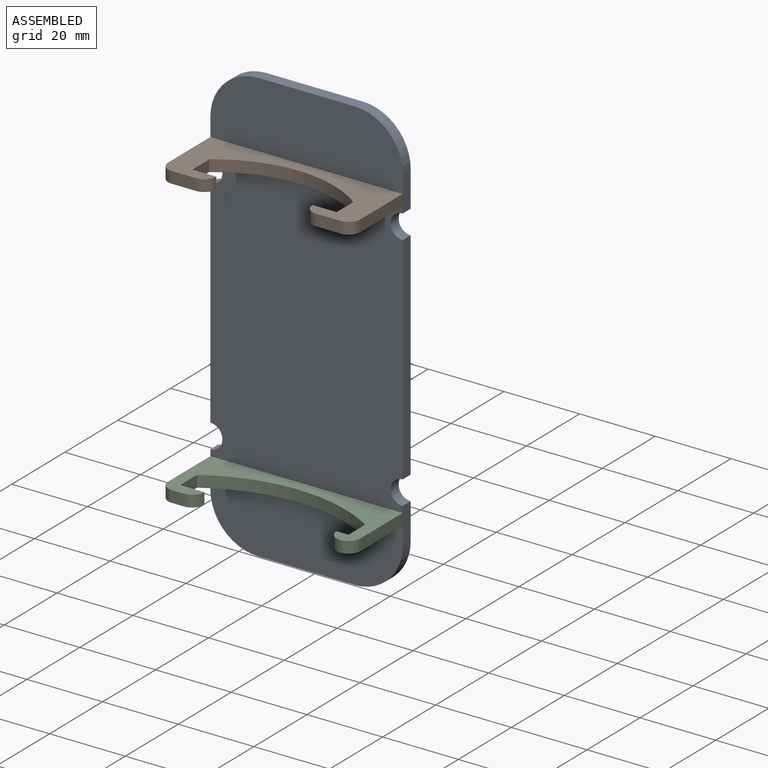
[diagram: assembled view]
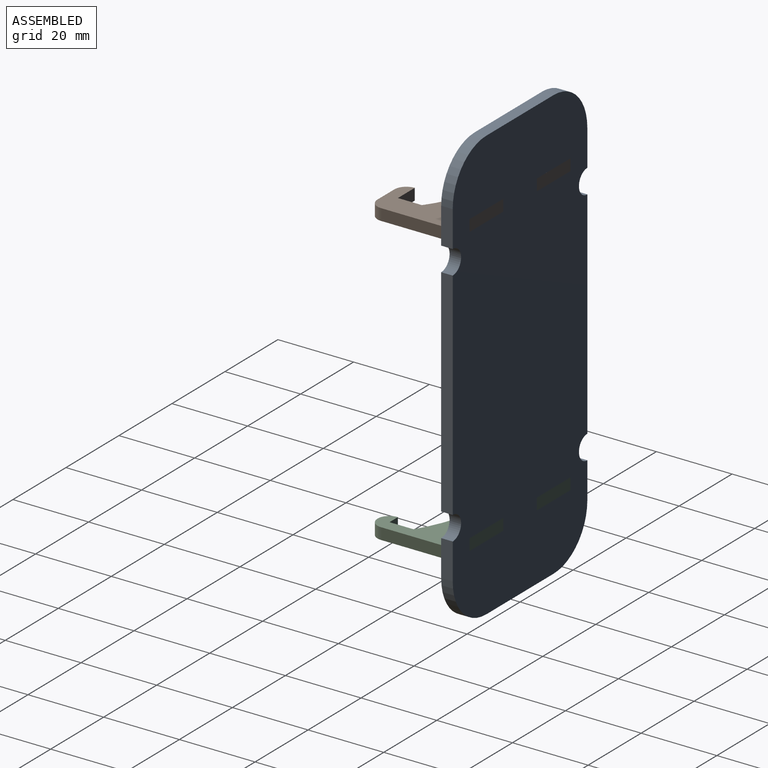
[diagram: assembled view, second angle]
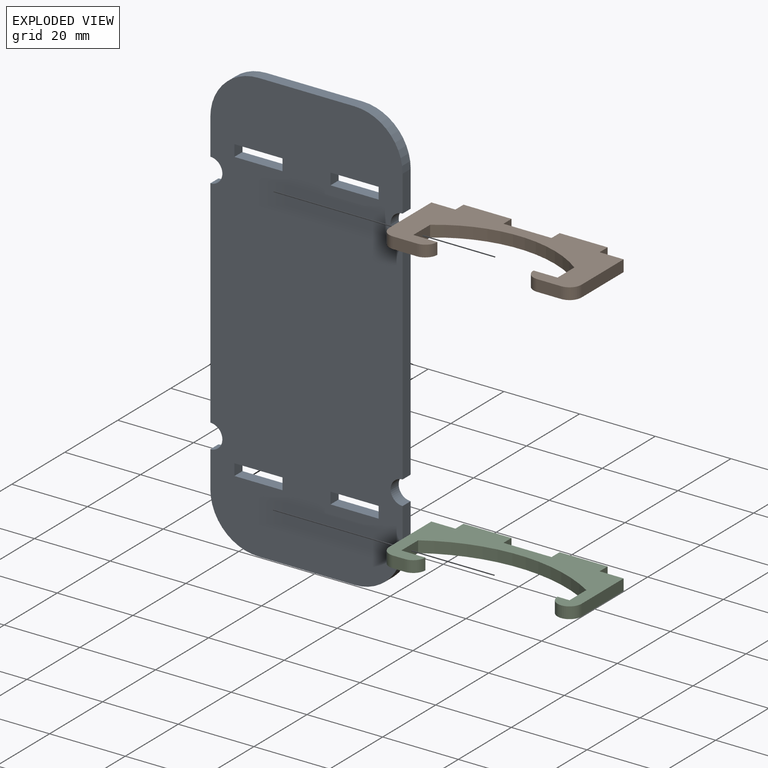
[diagram: exploded view]
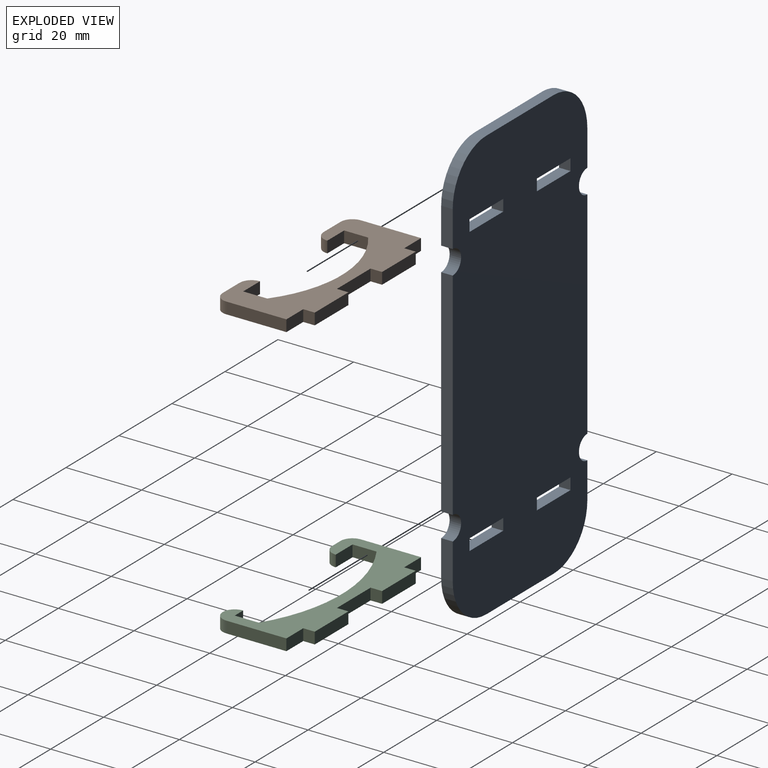
[diagram: exploded view, second angle]
ASSEMBLY  parts=3 mates=2
PART A: 34 faces, bbox 50.8x3x114.3 mm
  f0: plane 114.3x50.8mm, normal (0,-1,0), area 5449.8mm2, adj f2,f3,f4,f5,f6,f7,f8,f9
  f1: plane 114.3x50.8mm, normal (0,1,0), area 5449.8mm2, adj f2,f3,f4,f5,f6,f7,f8,f9
  f2: plane 9.53x3.05mm, normal (1,0,0), area 29mm2, adj f0,f1,f10,f16
  f3: plane 57.15x3.05mm, normal (1,0,0), area 174.2mm2, adj f0,f1,f15,f16
  f4: plane 9.53x3.05mm, normal (1,0,0), area 29mm2, adj f0,f1,f11,f15
  f5: plane 9.53x3.05mm, normal (-1,0,0), area 29mm2, adj f0,f1,f13,f17
  f6: plane 57.15x3.05mm, normal (-1,0,0), area 174.2mm2, adj f0,f1,f14,f17
  f7: plane 9.53x3.05mm, normal (-1,0,0), area 29mm2, adj f0,f1,f12,f14
  f8: plane 25.4x3.05mm, normal (0,0,-1), area 77.4mm2, adj f0,f1,f10,f13
  f9: plane 25.4x3.05mm, normal (0,0,1), area 77.4mm2, adj f0,f1,f11,f12
  f10: cylinder r=12.7mm len=12.7mm, axis (0,-1,0), area 60.8mm2, adj f0,f1,f2,f8
  f11: cylinder r=12.7mm len=12.7mm, axis (0,1,0), area 60.8mm2, adj f0,f1,f4,f9
  f12: cylinder r=12.7mm len=12.7mm, axis (0,-1,0), area 60.8mm2, adj f0,f1,f7,f9
  f13: cylinder r=12.7mm len=12.7mm, axis (0,1,0), area 60.8mm2, adj f0,f1,f5,f8
  f14: cylinder r=3.17mm len=6.35mm, axis (0,-1,0), area 30.4mm2, adj f0,f1,f6,f7
  f15: cylinder r=3.17mm len=6.35mm, axis (0,-1,0), area 30.4mm2, adj f0,f1,f3,f4
  f16: cylinder r=3.17mm len=6.35mm, axis (0,-1,0), area 30.4mm2, adj f0,f1,f2,f3
  f17: cylinder r=3.17mm len=6.35mm, axis (0,-1,0), area 30.4mm2, adj f0,f1,f5,f6
  f18: plane 3.05x3.05mm, normal (-1,0,0), area 9.3mm2, adj f0,f1,f19,f21
  f19: plane 12.7x3.05mm, normal (0,0,-1), area 38.7mm2, adj f0,f1,f18,f20
  f20: plane 3.05x3.05mm, normal (1,0,0), area 9.3mm2, adj f0,f1,f19,f21
  f21: plane 12.7x3.05mm, normal (0,0,1), area 38.7mm2, adj f0,f1,f18,f20
  f22: plane 3.05x3.05mm, normal (1,0,0), area 9.3mm2, adj f0,f1,f23,f25
  f23: plane 12.7x3.05mm, normal (0,0,1), area 38.7mm2, adj f0,f1,f22,f24
  f24: plane 3.05x3.05mm, normal (-1,0,0), area 9.3mm2, adj f0,f1,f23,f25
  f25: plane 12.7x3.05mm, normal (0,0,-1), area 38.7mm2, adj f0,f1,f22,f24
  f26: plane 3.05x3.05mm, normal (-1,0,0), area 9.3mm2, adj f0,f1,f27,f29
  f27: plane 12.7x3.05mm, normal (0,0,-1), area 38.7mm2, adj f0,f1,f26,f28
  f28: plane 3.05x3.05mm, normal (1,0,0), area 9.3mm2, adj f0,f1,f27,f29
  f29: plane 12.7x3.05mm, normal (0,0,1), area 38.7mm2, adj f0,f1,f26,f28
  f30: plane 12.7x3.05mm, normal (0,0,-1), area 38.7mm2, adj f0,f1,f31,f33
  f31: plane 3.05x3.05mm, normal (1,0,0), area 9.3mm2, adj f0,f1,f30,f32
  f32: plane 12.7x3.05mm, normal (0,0,1), area 38.7mm2, adj f0,f1,f31,f33
  f33: plane 3.05x3.05mm, normal (-1,0,0), area 9.3mm2, adj f0,f1,f30,f32
PART B: 24 faces, bbox 50.8x22.1x3 mm
  f0: plane 12.7x3.05mm, normal (0,1,0), area 38.7mm2, adj f1,f17,f18,f19
  f1: plane 3.05x3.05mm, normal (1,0,0), area 9.3mm2, adj f0,f2,f18,f19
  f2: plane 12.7x3.05mm, normal (0,1,0), area 38.7mm2, adj f1,f3,f18,f19
  f3: plane 3.05x3.05mm, normal (-1,0,0), area 9.3mm2, adj f2,f4,f18,f19
  f4: plane 6.35x3.05mm, normal (0,1,0), area 19.4mm2, adj f3,f5,f18,f19
  f5: plane 15.88x3.05mm, normal (-1,0,0), area 48.4mm2, adj f4,f18,f19,f20
  f6: plane 6.35x3.05mm, normal (0,-1,0), area 19.4mm2, adj f18,f19,f20,f21
  f7: plane 6.35x3.05mm, normal (0,1,0), area 19.4mm2, adj f8,f18,f19,f21
  f8: plane 6.35x3.05mm, normal (1,0,0), area 19.4mm2, adj f7,f9,f18,f19
  f9: cylinder r=31.75mm len=38.1mm, axis (0,0,-1), area 124.5mm2, adj f8,f10,f18,f19
  f10: plane 6.35x3.05mm, normal (-1,0,0), area 19.4mm2, adj f9,f11,f18,f19
  f11: plane 6.35x3.05mm, normal (0,1,0), area 19.4mm2, adj f10,f18,f19,f22
  f12: plane 6.35x3.05mm, normal (0,-1,0), area 19.4mm2, adj f18,f19,f22,f23
  f13: plane 15.88x3.05mm, normal (1,0,0), area 48.4mm2, adj f14,f18,f19,f23
  f14: plane 6.35x3.05mm, normal (0,1,0), area 19.4mm2, adj f13,f15,f18,f19
  f15: plane 3.05x3.05mm, normal (1,0,0), area 9.3mm2, adj f14,f16,f18,f19
  f16: plane 12.7x3.05mm, normal (0,1,0), area 38.7mm2, adj f15,f17,f18,f19
  f17: plane 3.05x3.05mm, normal (-1,0,0), area 9.3mm2, adj f0,f16,f18,f19
  f18: plane 50.8x22.1mm, normal (0,0,1), area 549.1mm2, adj f0,f1,f2,f3,f4,f5,f6,f7
  f19: plane 50.8x22.1mm, normal (0,0,-1), area 549.1mm2, adj f0,f1,f2,f3,f4,f5,f6,f7
  f20: cylinder r=3.17mm len=3.18mm, axis (0,0,1), area 15.2mm2, adj f5,f6,f18,f19
  f21: cylinder r=3.17mm len=3.18mm, axis (0,0,-1), area 15.2mm2, adj f6,f7,f18,f19
  f22: cylinder r=3.17mm len=3.18mm, axis (0,0,-1), area 15.2mm2, adj f11,f12,f18,f19
  f23: cylinder r=3.17mm len=3.18mm, axis (0,0,1), area 15.2mm2, adj f12,f13,f18,f19
PART C: 22 faces, bbox 50.8x22.1x3 mm
  f0: plane 12.7x3.05mm, normal (0,1,0), area 38.7mm2, adj f1,f16,f17,f18
  f1: plane 3.05x3.05mm, normal (1,0,0), area 9.3mm2, adj f0,f2,f17,f18
  f2: plane 12.7x3.05mm, normal (0,1,0), area 38.7mm2, adj f1,f3,f17,f18
  f3: plane 3.05x3.05mm, normal (-1,0,0), area 9.3mm2, adj f2,f4,f17,f18
  f4: plane 6.35x3.05mm, normal (0,1,0), area 19.4mm2, adj f3,f5,f17,f18
  f5: plane 15.88x3.05mm, normal (-1,0,0), area 48.4mm2, adj f4,f17,f18,f19
  f6: plane 3.18x3.05mm, normal (0,-1,0), area 9.7mm2, adj f17,f18,f19,f20
  f7: plane 6.35x3.05mm, normal (0,1,0), area 19.4mm2, adj f8,f17,f18,f20
  f8: plane 6.35x3.05mm, normal (1,0,0), area 19.4mm2, adj f7,f9,f17,f18
  f9: cylinder r=42.07mm len=44.45mm, axis (0,0,-1), area 142.7mm2, adj f8,f10,f17,f18
  f10: plane 6.35x3.05mm, normal (-1,0,0), area 19.4mm2, adj f9,f11,f17,f18
  f11: plane 3.18x3.05mm, normal (0,1,0), area 9.7mm2, adj f10,f17,f18,f21
  f12: plane 15.88x3.05mm, normal (1,0,0), area 48.4mm2, adj f13,f17,f18,f21
  f13: plane 6.35x3.05mm, normal (0,1,0), area 19.4mm2, adj f12,f14,f17,f18
  f14: plane 3.05x3.05mm, normal (1,0,0), area 9.3mm2, adj f13,f15,f17,f18
  f15: plane 12.7x3.05mm, normal (0,1,0), area 38.7mm2, adj f14,f16,f17,f18
  f16: plane 3.05x3.05mm, normal (-1,0,0), area 9.3mm2, adj f0,f15,f17,f18
  f17: plane 50.8x22.1mm, normal (0,0,1), area 452.2mm2, adj f0,f1,f2,f3,f4,f5,f6,f7
  f18: plane 50.8x22.1mm, normal (0,0,-1), area 452.2mm2, adj f0,f1,f2,f3,f4,f5,f6,f7
  f19: cylinder r=3.17mm len=3.18mm, axis (0,0,1), area 15.2mm2, adj f5,f6,f17,f18
  f20: cylinder r=3.17mm len=3.18mm, axis (0,0,-1), area 15.2mm2, adj f6,f7,f17,f18
  f21: cylinder r=3.17mm len=6.35mm, axis (0,0,1), area 30.4mm2, adj f11,f12,f17,f18
PLACE A at identity
PLACE B t=(0,-12.57,36.58)mm
PLACE C t=(0,-12.57,-39.62)mm
MATE planar B.f2 <-> A.f1  axis (0,1,0) through (-12.7,0,38.1)mm
MATE planar C.f15 <-> A.f1  axis (0,1,0) through (12.7,0,-38.1)mm
